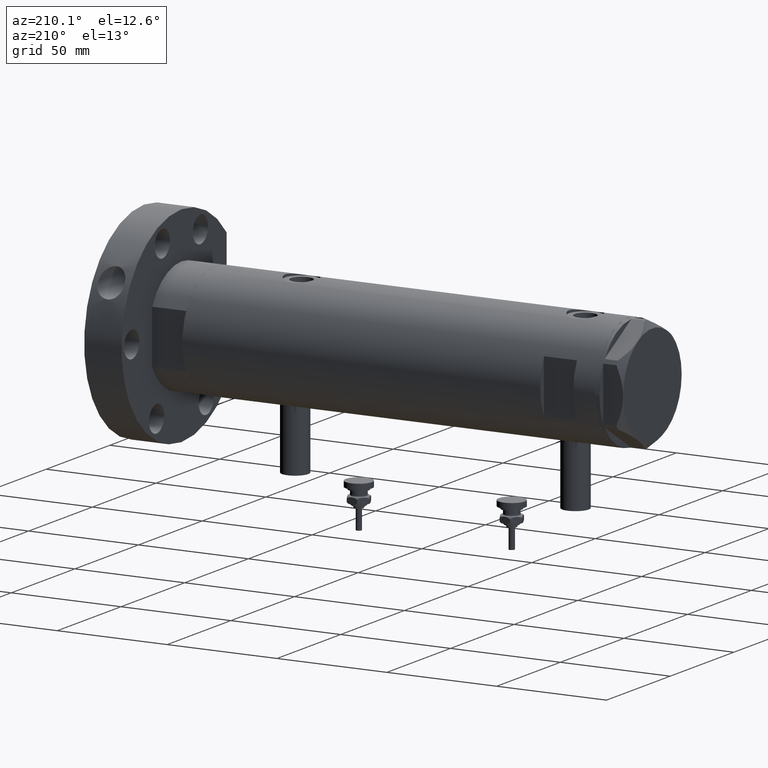
[diagram: clean part render]
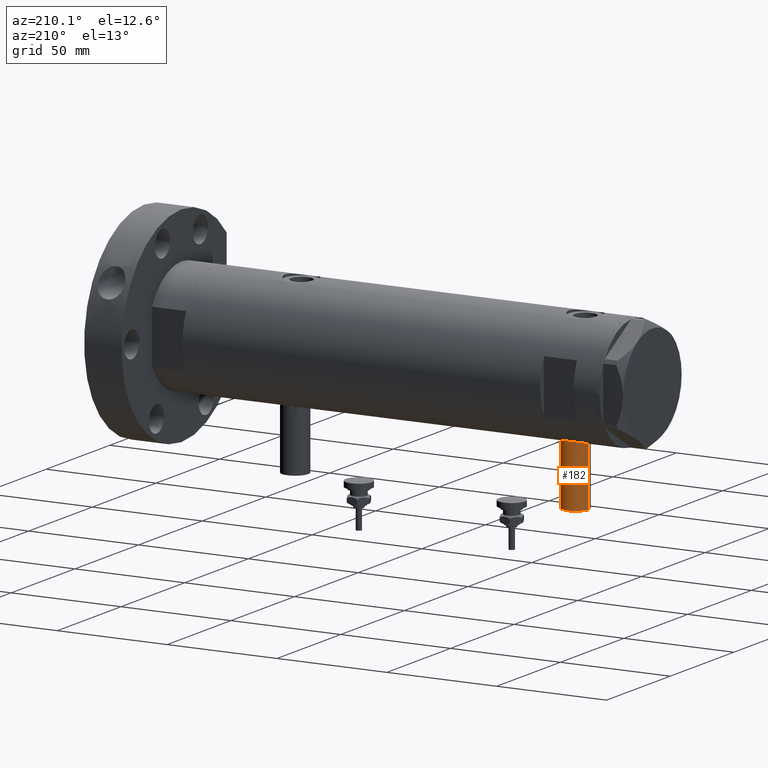
[diagram: same view with one face highlighted and labeled with its STEP entity id]
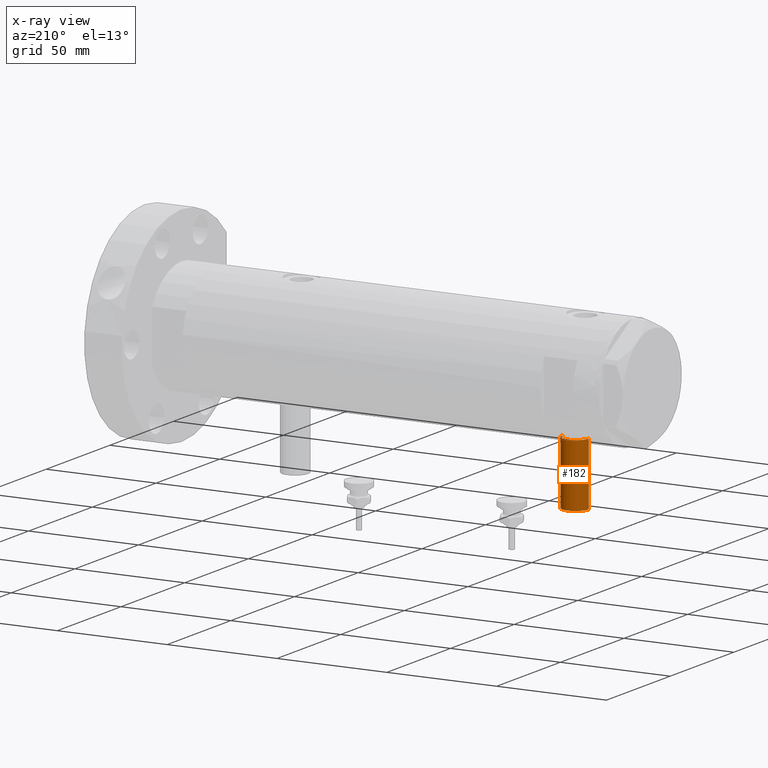
[diagram: x-ray of the same camera — body ghosted, the highlighted face saturated]
A machine part, auxiliary view. The second image highlights one B-rep face of the part: STEP entity #182.
The next image is the same camera in x-ray: the body ghosted, the highlighted face saturated — about 0% of this face is hidden behind the body in this view.
In plain terms, the highlighted cylindrical surface (edge-blend (fillet) strip) has radius 6 mm, axis along (0, 0, 1).
Its self-contained STEP definition (entity closure, byte-faithful):
#182 = ADVANCED_FACE ( 'NONE', ( #2193 ), #4671, .T. ) ;
#325 = LINE ( 'NONE', #1044, #4856 ) ;
#711 = EDGE_CURVE ( 'NONE', #2992, #1691, #861, .T. ) ;
#718 = CARTESIAN_POINT ( 'NONE',  ( -24.80000000000000426, 7.347880794884101001E-16, 75.95000000000000284 ) ) ;
#861 = CIRCLE ( 'NONE', #1901, 5.999999999999991118 ) ;
#953 = CIRCLE ( 'NONE', #5098, 5.999999999999991118 ) ;
#1010 = ORIENTED_EDGE ( 'NONE', *, *, #5846, .T. ) ;
#1044 = CARTESIAN_POINT ( 'NONE',  ( -53.40000000000000568, 7.347880794884104945E-16, 75.95000000000000284 ) ) ;
#1190 = DIRECTION ( 'NONE',  ( -1.000000000000000000, 0.000000000000000000, 0.000000000000000000 ) ) ;
#1691 = VERTEX_POINT ( 'NONE', #5469 ) ;
#1807 = DIRECTION ( 'NONE',  ( 1.000000000000000000, -0.000000000000000000, -0.000000000000000000 ) ) ;
#1901 = AXIS2_PLACEMENT_3D ( 'NONE', #2173, #1190, #7391 ) ;
#1977 = CARTESIAN_POINT ( 'NONE',  ( -53.40000000000000568, 0.000000000000000000, 63.95000000000002416 ) ) ;
#2062 = DIRECTION ( 'NONE',  ( 1.000000000000000000, -0.000000000000000000, -0.000000000000000000 ) ) ;
#2155 = DIRECTION ( 'NONE',  ( 1.000000000000000000, -0.000000000000000000, -0.000000000000000000 ) ) ;
#2173 = CARTESIAN_POINT ( 'NONE',  ( -24.80000000000000426, 0.000000000000000000, 69.95000000000001705 ) ) ;
#2193 = FACE_OUTER_BOUND ( 'NONE', #5261, .T. ) ;
#2468 = EDGE_CURVE ( 'NONE', #7825, #5992, #953, .T. ) ;
#2624 = EDGE_CURVE ( 'NONE', #5992, #1691, #5100, .T. ) ;
#2639 = VECTOR ( 'NONE', #2062, 1000.000000000000000 ) ;
#2992 = VERTEX_POINT ( 'NONE', #718 ) ;
#3418 = CARTESIAN_POINT ( 'NONE',  ( -53.40000000000000568, 0.000000000000000000, 69.95000000000001705 ) ) ;
#3765 = ORIENTED_EDGE ( 'NONE', *, *, #711, .T. ) ;
#4635 = DIRECTION ( 'NONE',  ( 0.000000000000000000, 0.000000000000000000, -1.000000000000000000 ) ) ;
#4671 = CYLINDRICAL_SURFACE ( 'NONE', #4993, 5.999999999999991118 ) ;
#4856 = VECTOR ( 'NONE', #1807, 1000.000000000000000 ) ;
#4857 = CARTESIAN_POINT ( 'NONE',  ( -53.40000000000000568, 0.000000000000000000, 69.95000000000001705 ) ) ;
#4993 = AXIS2_PLACEMENT_3D ( 'NONE', #3418, #2155, #4635 ) ;
#5098 = AXIS2_PLACEMENT_3D ( 'NONE', #4857, #7882, #6774 ) ;
#5100 = LINE ( 'NONE', #1977, #2639 ) ;
#5261 = EDGE_LOOP ( 'NONE', ( #5554, #1010, #3765, #7871 ) ) ;
#5469 = CARTESIAN_POINT ( 'NONE',  ( -24.80000000000000426, 0.000000000000000000, 63.95000000000002416 ) ) ;
#5554 = ORIENTED_EDGE ( 'NONE', *, *, #2468, .F. ) ;
#5846 = EDGE_CURVE ( 'NONE', #7825, #2992, #325, .T. ) ;
#5992 = VERTEX_POINT ( 'NONE', #6807 ) ;
#6774 = DIRECTION ( 'NONE',  ( 0.000000000000000000, 0.000000000000000000, 1.000000000000000000 ) ) ;
#6807 = CARTESIAN_POINT ( 'NONE',  ( -53.40000000000000568, 0.000000000000000000, 63.95000000000002416 ) ) ;
#7391 = DIRECTION ( 'NONE',  ( 0.000000000000000000, 0.000000000000000000, 1.000000000000000000 ) ) ;
#7418 = CARTESIAN_POINT ( 'NONE',  ( -53.40000000000000568, 7.347880794884101001E-16, 75.95000000000000284 ) ) ;
#7825 = VERTEX_POINT ( 'NONE', #7418 ) ;
#7871 = ORIENTED_EDGE ( 'NONE', *, *, #2624, .F. ) ;
#7882 = DIRECTION ( 'NONE',  ( -1.000000000000000000, 0.000000000000000000, 0.000000000000000000 ) ) ;